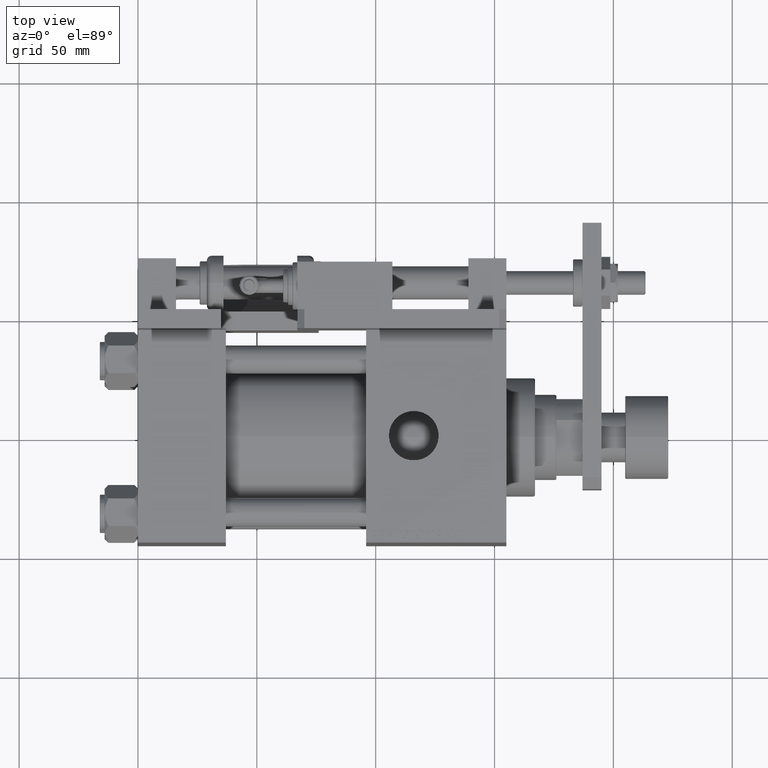
[diagram: clean part render]
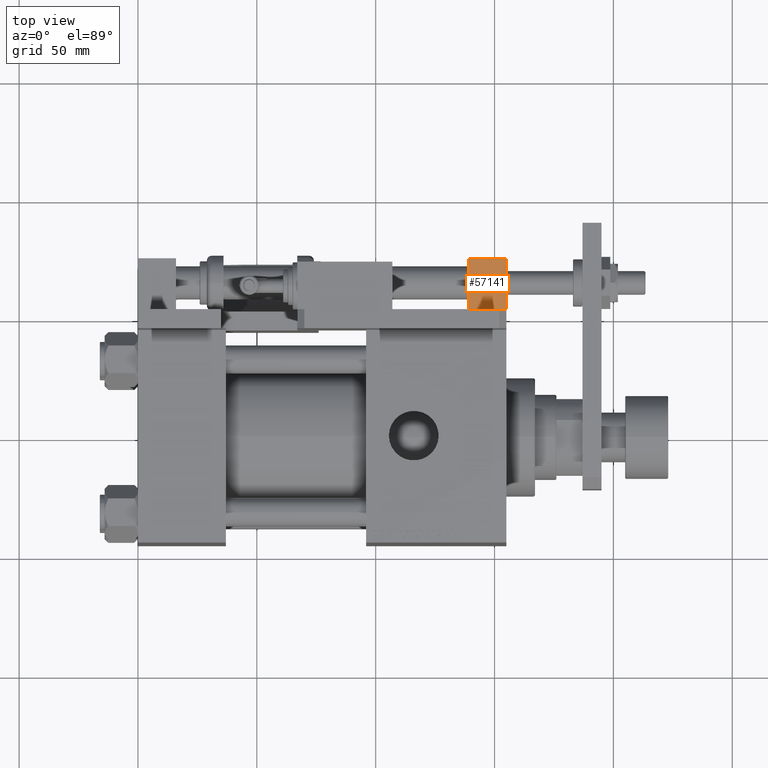
[diagram: same view with one face highlighted and labeled with its STEP entity id]
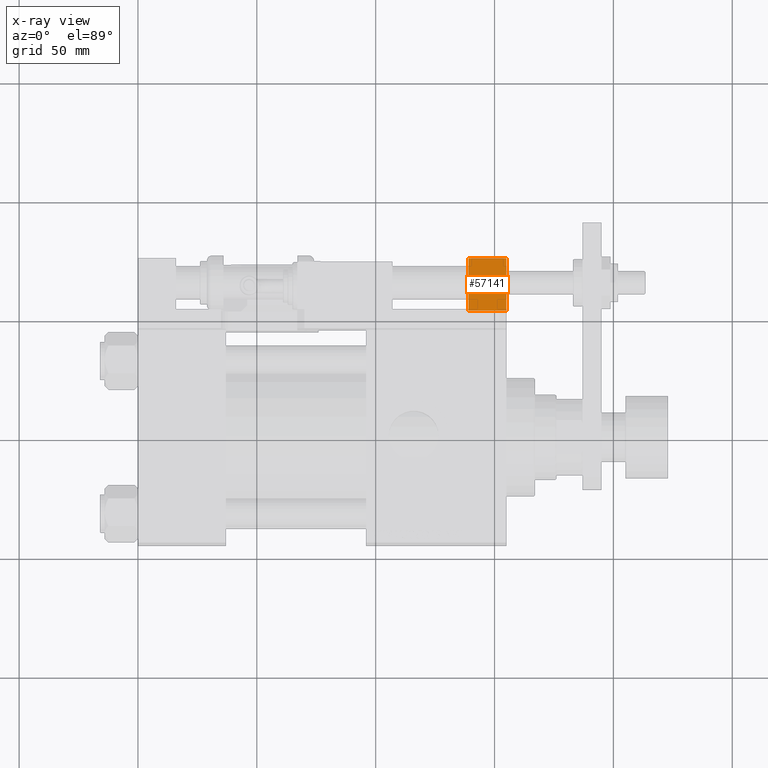
[diagram: x-ray of the same camera — body ghosted, the highlighted face saturated]
A machine part, top view. The second image highlights one B-rep face of the part: STEP entity #57141.
The next image is the same camera in x-ray: the body ghosted, the highlighted face saturated — about 0% of this face is hidden behind the body in this view.
In plain terms, the highlighted planar face has unit normal (0, -0, 1).
Its self-contained STEP definition (entity closure, byte-faithful):
#1244 = CARTESIAN_POINT ( 'NONE',  ( -23.99999999999999289, -10.99999999999999645, -16.00000000000000000 ) ) ;
#1841 = EDGE_LOOP ( 'NONE', ( #9681, #27363, #40820, #15808 ) ) ;
#2135 = CARTESIAN_POINT ( 'NONE',  ( -23.99999999999999289, -10.99999999999999645, 0.000000000000000000 ) ) ;
#3905 = LINE ( 'NONE', #21774, #26805 ) ;
#4518 = CARTESIAN_POINT ( 'NONE',  ( -23.99999999999999289, -10.99999999999999645, -16.00000000000000000 ) ) ;
#4774 = DIRECTION ( 'NONE',  ( 1.577021341797097807E-16, -1.000000000000000000, 0.000000000000000000 ) ) ;
#5092 = LINE ( 'NONE', #4518, #30515 ) ;
#6268 = DIRECTION ( 'NONE',  ( 0.000000000000000000, 0.000000000000000000, 1.000000000000000000 ) ) ;
#9681 = ORIENTED_EDGE ( 'NONE', *, *, #10332, .F. ) ;
#10332 = EDGE_CURVE ( 'NONE', #28039, #19391, #3905, .T. ) ;
#15808 = ORIENTED_EDGE ( 'NONE', *, *, #36188, .T. ) ;
#18744 = CARTESIAN_POINT ( 'NONE',  ( -23.99999999999999645, 11.00000000000000000, -16.00000000000000000 ) ) ;
#19391 = VERTEX_POINT ( 'NONE', #2135 ) ;
#20426 = VERTEX_POINT ( 'NONE', #1244 ) ;
#21774 = CARTESIAN_POINT ( 'NONE',  ( -23.99999999999999645, 11.00000000000000000, 0.000000000000000000 ) ) ;
#22970 = LINE ( 'NONE', #23266, #52075 ) ;
#23266 = CARTESIAN_POINT ( 'NONE',  ( -23.99999999999999645, 11.00000000000000000, -16.00000000000000000 ) ) ;
#26805 = VECTOR ( 'NONE', #4774, 1000.000000000000000 ) ;
#27363 = ORIENTED_EDGE ( 'NONE', *, *, #34453, .F. ) ;
#28039 = VERTEX_POINT ( 'NONE', #47671 ) ;
#30515 = VECTOR ( 'NONE', #35848, 1000.000000000000000 ) ;
#33351 = DIRECTION ( 'NONE',  ( 1.577021341797097807E-16, -1.000000000000000000, 0.000000000000000000 ) ) ;
#33646 = LINE ( 'NONE', #55893, #56211 ) ;
#34453 = EDGE_CURVE ( 'NONE', #56409, #28039, #22970, .T. ) ;
#34872 = DIRECTION ( 'NONE',  ( -1.000000000000000000, -1.577021341797097807E-16, 0.000000000000000000 ) ) ;
#35848 = DIRECTION ( 'NONE',  ( 0.000000000000000000, 0.000000000000000000, 1.000000000000000000 ) ) ;
#36188 = EDGE_CURVE ( 'NONE', #20426, #19391, #5092, .T. ) ;
#39569 = FACE_OUTER_BOUND ( 'NONE', #1841, .T. ) ;
#40820 = ORIENTED_EDGE ( 'NONE', *, *, #46545, .T. ) ;
#42946 = AXIS2_PLACEMENT_3D ( 'NONE', #48060, #34872, #43960 ) ;
#43960 = DIRECTION ( 'NONE',  ( 1.577021341797097807E-16, -1.000000000000000000, 0.000000000000000000 ) ) ;
#46545 = EDGE_CURVE ( 'NONE', #56409, #20426, #33646, .T. ) ;
#47671 = CARTESIAN_POINT ( 'NONE',  ( -23.99999999999999645, 11.00000000000000000, 0.000000000000000000 ) ) ;
#48060 = CARTESIAN_POINT ( 'NONE',  ( -23.99999999999999645, 11.00000000000000000, -16.00000000000000000 ) ) ;
#52075 = VECTOR ( 'NONE', #6268, 1000.000000000000000 ) ;
#55893 = CARTESIAN_POINT ( 'NONE',  ( -23.99999999999999645, 11.00000000000000000, -16.00000000000000000 ) ) ;
#56211 = VECTOR ( 'NONE', #33351, 1000.000000000000000 ) ;
#56409 = VERTEX_POINT ( 'NONE', #18744 ) ;
#57141 = ADVANCED_FACE ( 'NONE', ( #39569 ), #57415, .T. ) ;
#57415 = PLANE ( 'NONE',  #42946 ) ;